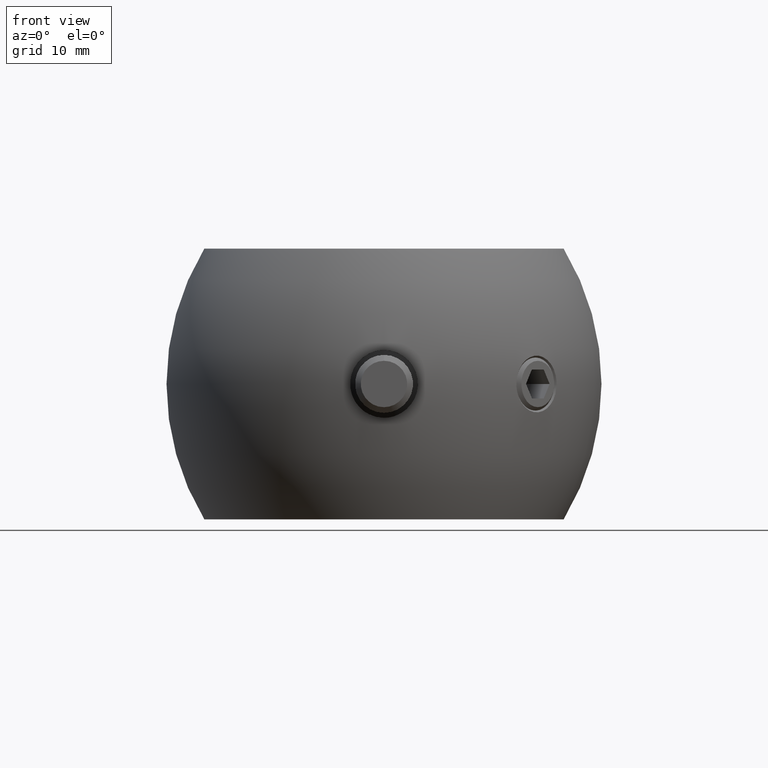
[diagram: clean part render]
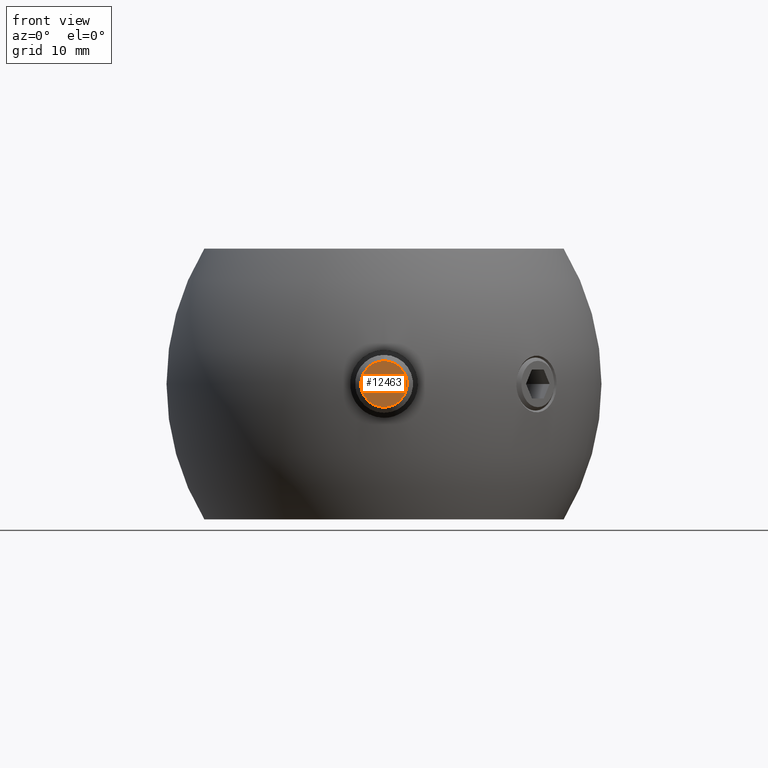
[diagram: same view with one face highlighted and labeled with its STEP entity id]
A machine part, front view. The second image highlights one B-rep face of the part: STEP entity #12463.
In plain terms, the highlighted planar face has unit normal (0, -1, -0).
Its self-contained STEP definition (entity closure, byte-faithful):
#3041 = EDGE_LOOP ( 'NONE', ( #19820, #10163 ) ) ;
#4575 = AXIS2_PLACEMENT_3D ( 'NONE', #6932, #12018, #18969 ) ;
#5021 = CIRCLE ( 'NONE', #13002, 2.399999999999993694 ) ;
#5265 = VERTEX_POINT ( 'NONE', #7789 ) ;
#6932 = CARTESIAN_POINT ( 'NONE',  ( 0.000000000000000000, -1.714505518806294441E-15, 13.99999999999999822 ) ) ;
#7178 = DIRECTION ( 'NONE',  ( 0.000000000000000000, -1.224646799147353207E-16, 1.000000000000000000 ) ) ;
#7789 = CARTESIAN_POINT ( 'NONE',  ( 0.000000000000000000, 2.399999999999991918, 13.99999999999999822 ) ) ;
#10163 = ORIENTED_EDGE ( 'NONE', *, *, #10841, .T. ) ;
#10841 = EDGE_CURVE ( 'NONE', #18642, #5265, #21292, .T. ) ;
#10895 = DIRECTION ( 'NONE',  ( 0.000000000000000000, -1.224646799147353207E-16, 1.000000000000000000 ) ) ;
#12018 = DIRECTION ( 'NONE',  ( 0.000000000000000000, -1.224646799147353207E-16, 1.000000000000000000 ) ) ;
#12105 = EDGE_CURVE ( 'NONE', #5265, #18642, #5021, .T. ) ;
#12463 = ADVANCED_FACE ( 'NONE', ( #19768 ), #18674, .T. ) ;
#12629 = CARTESIAN_POINT ( 'NONE',  ( 0.000000000000000000, -1.714505518806294441E-15, 13.99999999999999822 ) ) ;
#13002 = AXIS2_PLACEMENT_3D ( 'NONE', #17437, #7178, #19222 ) ;
#13581 = AXIS2_PLACEMENT_3D ( 'NONE', #12629, #10895, #15747 ) ;
#15723 = CARTESIAN_POINT ( 'NONE',  ( 3.306546357697848310E-16, -2.399999999999995470, 13.99999999999999822 ) ) ;
#15747 = DIRECTION ( 'NONE',  ( 0.000000000000000000, -1.000000000000000000, 0.000000000000000000 ) ) ;
#17437 = CARTESIAN_POINT ( 'NONE',  ( 0.000000000000000000, -1.714505518806294441E-15, 13.99999999999999822 ) ) ;
#18642 = VERTEX_POINT ( 'NONE', #15723 ) ;
#18674 = PLANE ( 'NONE',  #4575 ) ;
#18969 = DIRECTION ( 'NONE',  ( 0.000000000000000000, -1.000000000000000000, -1.224646799147353207E-16 ) ) ;
#19222 = DIRECTION ( 'NONE',  ( 0.000000000000000000, -1.000000000000000000, 0.000000000000000000 ) ) ;
#19768 = FACE_OUTER_BOUND ( 'NONE', #3041, .T. ) ;
#19820 = ORIENTED_EDGE ( 'NONE', *, *, #12105, .T. ) ;
#21292 = CIRCLE ( 'NONE', #13581, 2.399999999999993694 ) ;